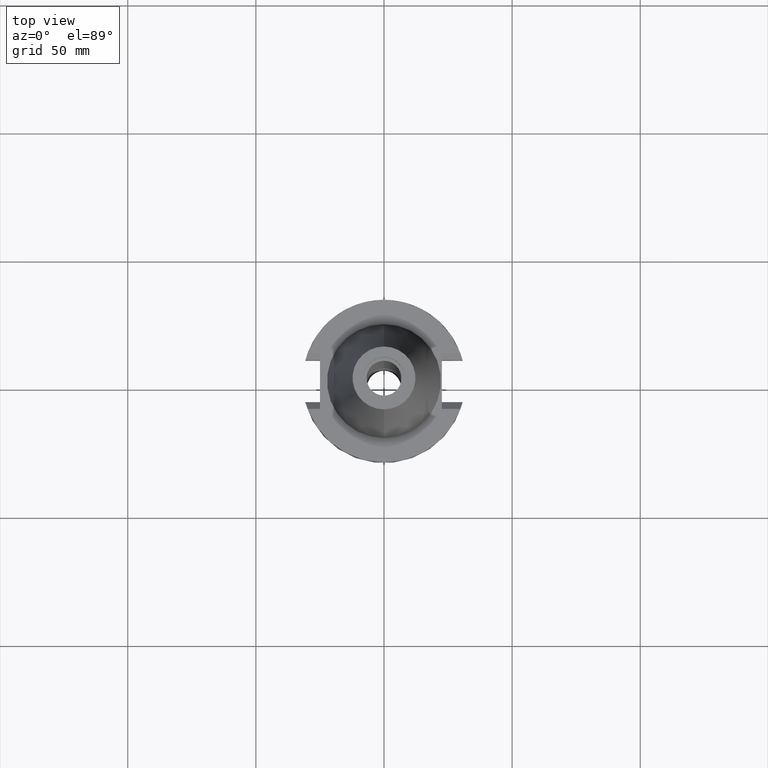
[diagram: clean part render]
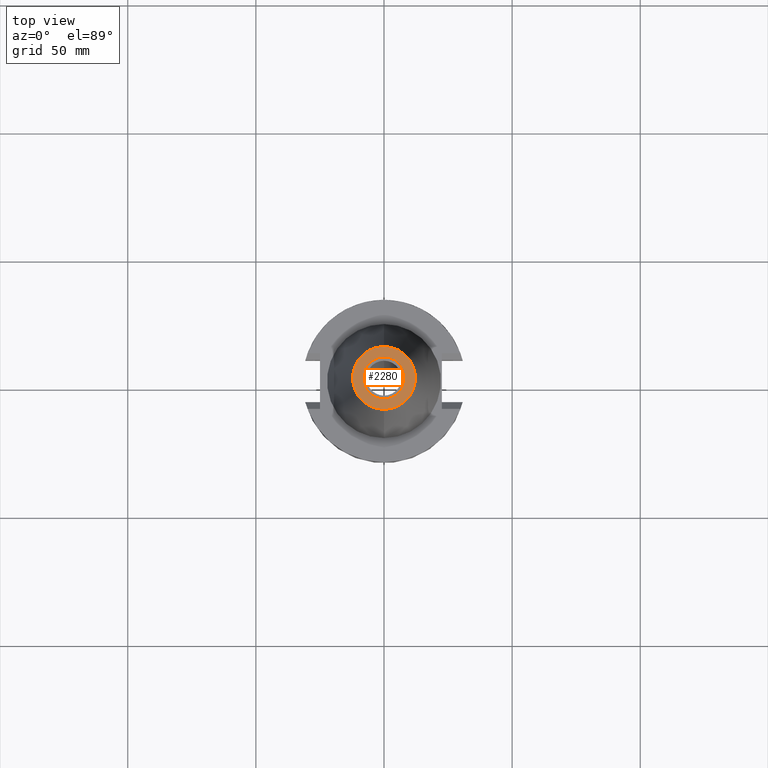
[diagram: same view with one face highlighted and labeled with its STEP entity id]
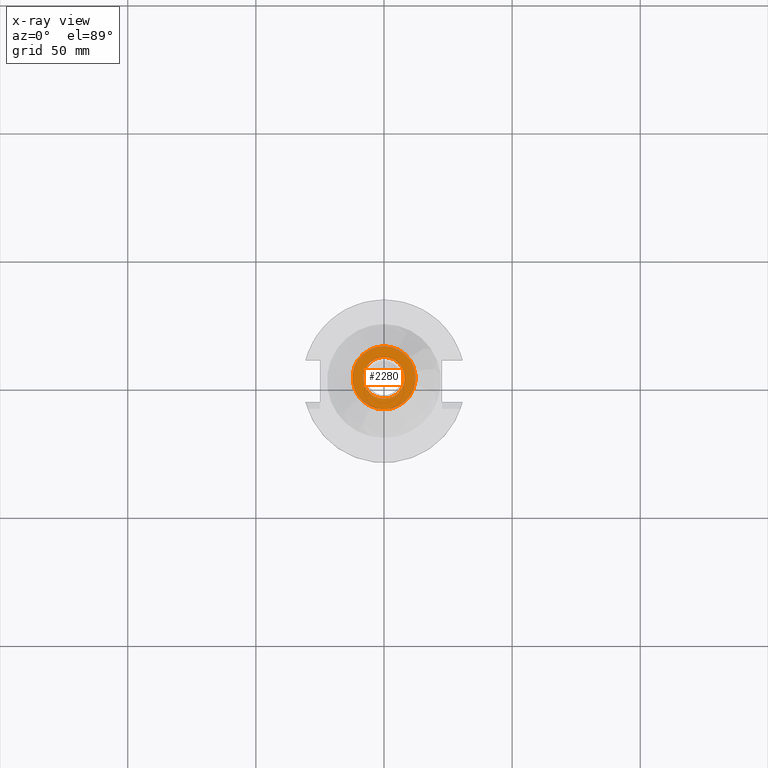
[diagram: x-ray of the same camera — body ghosted, the highlighted face saturated]
A machine part, top view. The second image highlights one B-rep face of the part: STEP entity #2280.
The next image is the same camera in x-ray: the body ghosted, the highlighted face saturated — about 0% of this face is hidden behind the body in this view.
In plain terms, the highlighted planar face has unit normal (0, 0, -1).
Its self-contained STEP definition (entity closure, byte-faithful):
#88 = FACE_OUTER_BOUND ( 'NONE', #2167, .T. ) ;
#171 = DIRECTION ( 'NONE',  ( 0.0000000000000000000, 0.0000000000000000000, -1.000000000000000000 ) ) ;
#362 = ORIENTED_EDGE ( 'NONE', *, *, #2553, .F. ) ;
#496 = DIRECTION ( 'NONE',  ( 0.0000000000000000000, 0.0000000000000000000, 1.000000000000000000 ) ) ;
#629 = VERTEX_POINT ( 'NONE', #2782 ) ;
#633 = EDGE_CURVE ( 'NONE', #629, #2656, #3118, .T. ) ;
#645 = DIRECTION ( 'NONE',  ( 0.0000000000000000000, 0.0000000000000000000, -1.000000000000000000 ) ) ;
#647 = DIRECTION ( 'NONE',  ( 0.0000000000000000000, 1.000000000000000000, 0.0000000000000000000 ) ) ;
#818 = AXIS2_PLACEMENT_3D ( 'NONE', #2929, #171, #2440 ) ;
#850 = PLANE ( 'NONE',  #3192 ) ;
#891 = EDGE_CURVE ( 'NONE', #2656, #629, #2447, .T. ) ;
#1145 = VERTEX_POINT ( 'NONE', #2896 ) ;
#1209 = ORIENTED_EDGE ( 'NONE', *, *, #891, .F. ) ;
#1343 = VERTEX_POINT ( 'NONE', #2411 ) ;
#1675 = AXIS2_PLACEMENT_3D ( 'NONE', #2503, #496, #1771 ) ;
#1758 = AXIS2_PLACEMENT_3D ( 'NONE', #2089, #3129, #2796 ) ;
#1771 = DIRECTION ( 'NONE',  ( 0.0000000000000000000, 1.000000000000000000, 0.0000000000000000000 ) ) ;
#1878 = AXIS2_PLACEMENT_3D ( 'NONE', #2666, #2153, #647 ) ;
#1884 = FACE_BOUND ( 'NONE', #2340, .T. ) ;
#1994 = CIRCLE ( 'NONE', #1878, 12.27186888070000137 ) ;
#2089 = CARTESIAN_POINT ( 'NONE',  ( 0.0000000000000000000, 2.222091000882999701E-14, 68.25000000000000000 ) ) ;
#2115 = DIRECTION ( 'NONE',  ( 0.0000000000000000000, -1.000000000000000000, 0.0000000000000000000 ) ) ;
#2153 = DIRECTION ( 'NONE',  ( 0.0000000000000000000, 0.0000000000000000000, -1.000000000000000000 ) ) ;
#2167 = EDGE_LOOP ( 'NONE', ( #362, #3013 ) ) ;
#2253 = CIRCLE ( 'NONE', #818, 12.27186888070000137 ) ;
#2280 = ADVANCED_FACE ( 'NONE', ( #88, #1884 ), #850, .F. ) ;
#2340 = EDGE_LOOP ( 'NONE', ( #2925, #1209 ) ) ;
#2345 = CARTESIAN_POINT ( 'NONE',  ( 0.0000000000000000000, 2.060468239564999825E-14, 68.25000000000000000 ) ) ;
#2411 = CARTESIAN_POINT ( 'NONE',  ( 0.0000000000000000000, -12.27186888070000137, 68.25000000000000000 ) ) ;
#2440 = DIRECTION ( 'NONE',  ( 0.0000000000000000000, -1.000000000000000000, 0.0000000000000000000 ) ) ;
#2447 = CIRCLE ( 'NONE', #1758, 8.160000000000000142 ) ;
#2453 = EDGE_CURVE ( 'NONE', #1343, #1145, #2253, .T. ) ;
#2503 = CARTESIAN_POINT ( 'NONE',  ( 0.0000000000000000000, 2.222091000882999701E-14, 68.25000000000000000 ) ) ;
#2553 = EDGE_CURVE ( 'NONE', #1145, #1343, #1994, .T. ) ;
#2656 = VERTEX_POINT ( 'NONE', #3221 ) ;
#2666 = CARTESIAN_POINT ( 'NONE',  ( 0.0000000000000000000, 1.642557519355999895E-14, 68.25000000000000000 ) ) ;
#2782 = CARTESIAN_POINT ( 'NONE',  ( 0.0000000000000000000, 8.160000000000000142, 68.25000000000000000 ) ) ;
#2796 = DIRECTION ( 'NONE',  ( 0.0000000000000000000, -1.000000000000000000, 0.0000000000000000000 ) ) ;
#2896 = CARTESIAN_POINT ( 'NONE',  ( 0.0000000000000000000, 12.27186888070000137, 68.25000000000000000 ) ) ;
#2925 = ORIENTED_EDGE ( 'NONE', *, *, #633, .F. ) ;
#2929 = CARTESIAN_POINT ( 'NONE',  ( 0.0000000000000000000, 1.642557519355999895E-14, 68.25000000000000000 ) ) ;
#3013 = ORIENTED_EDGE ( 'NONE', *, *, #2453, .F. ) ;
#3118 = CIRCLE ( 'NONE', #1675, 8.160000000000000142 ) ;
#3129 = DIRECTION ( 'NONE',  ( 0.0000000000000000000, 0.0000000000000000000, 1.000000000000000000 ) ) ;
#3192 = AXIS2_PLACEMENT_3D ( 'NONE', #2345, #645, #2115 ) ;
#3221 = CARTESIAN_POINT ( 'NONE',  ( 0.0000000000000000000, -8.160000000000000142, 68.25000000000000000 ) ) ;